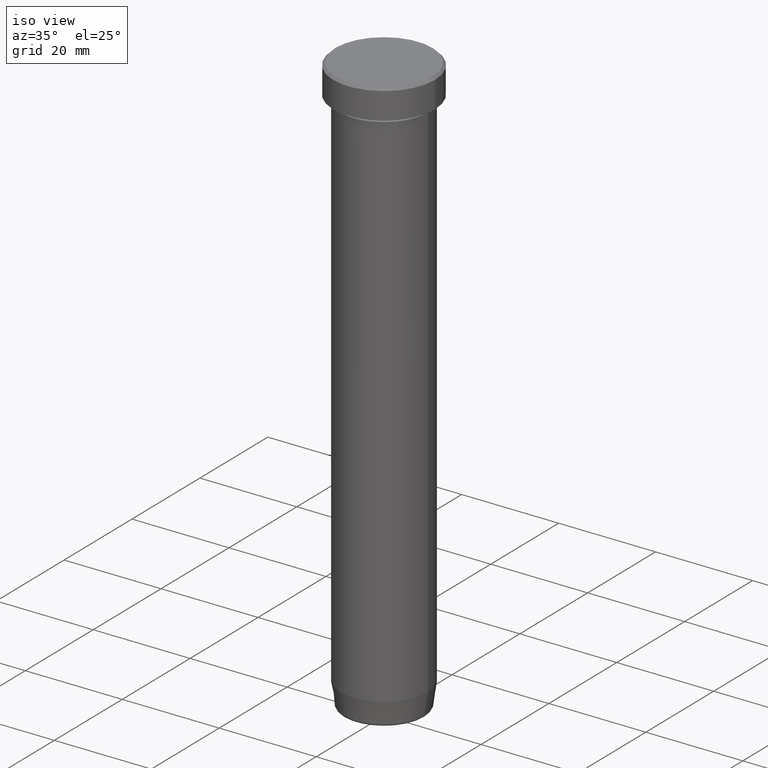
[diagram: clean part render]
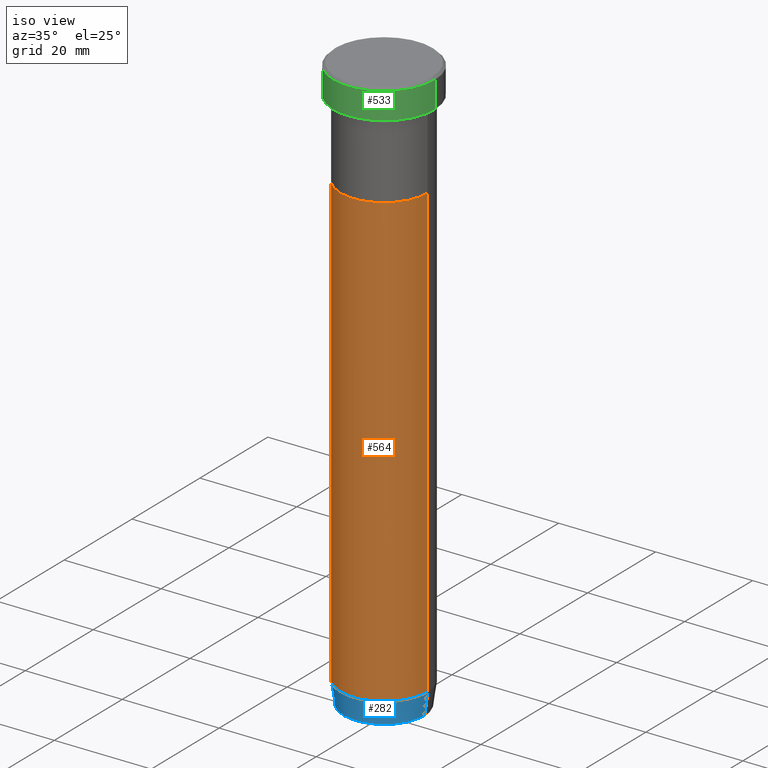
[diagram: same view with three faces highlighted in distinct colors, each labeled with its STEP entity id]
A machine part, iso view with three faces highlighted in distinct colors.
Their STEP definitions:

[orange] entity #564 — the highlighted cylindrical surface (partial cylindrical patch) has radius 9 mm, axis along (-0, -0, 1).
#1 = VERTEX_POINT ( 'NONE', #71 ) ;
#37 = LINE ( 'NONE', #518, #575 ) ;
#56 = EDGE_CURVE ( 'NONE', #336, #117, #84, .T. ) ;
#64 = ORIENTED_EDGE ( 'NONE', *, *, #378, .T. ) ;
#71 = CARTESIAN_POINT ( 'NONE',  ( -9.000000000000000000, 1.102182119232617714E-15, -114.9999999999999858 ) ) ;
#76 = CYLINDRICAL_SURFACE ( 'NONE', #176, 9.000000000000000000 ) ;
#84 = CIRCLE ( 'NONE', #330, 9.000000000000000000 ) ;
#87 = AXIS2_PLACEMENT_3D ( 'NONE', #508, #267, #503 ) ;
#117 = VERTEX_POINT ( 'NONE', #450 ) ;
#121 = DIRECTION ( 'NONE',  ( -0.000000000000000000, -0.000000000000000000, 1.000000000000000000 ) ) ;
#140 = LINE ( 'NONE', #144, #288 ) ;
#144 = CARTESIAN_POINT ( 'NONE',  ( 9.000000000000000000, 0.000000000000000000, 0.000000000000000000 ) ) ;
#156 = FACE_OUTER_BOUND ( 'NONE', #389, .T. ) ;
#171 = CARTESIAN_POINT ( 'NONE',  ( 0.000000000000000000, 0.000000000000000000, 0.000000000000000000 ) ) ;
#176 = AXIS2_PLACEMENT_3D ( 'NONE', #171, #525, #255 ) ;
#193 = CARTESIAN_POINT ( 'NONE',  ( -9.000000000000000000, 1.102182119232617714E-15, -22.00000000000000000 ) ) ;
#225 = CARTESIAN_POINT ( 'NONE',  ( 9.000000000000000000, 0.000000000000000000, -114.9999999999999858 ) ) ;
#255 = DIRECTION ( 'NONE',  ( 1.000000000000000000, 0.000000000000000000, 0.000000000000000000 ) ) ;
#259 = VERTEX_POINT ( 'NONE', #225 ) ;
#262 = EDGE_CURVE ( 'NONE', #1, #259, #398, .T. ) ;
#267 = DIRECTION ( 'NONE',  ( -0.000000000000000000, -0.000000000000000000, 1.000000000000000000 ) ) ;
#283 = DIRECTION ( 'NONE',  ( -0.000000000000000000, -0.000000000000000000, 1.000000000000000000 ) ) ;
#288 = VECTOR ( 'NONE', #283, 1000.000000000000000 ) ;
#325 = EDGE_CURVE ( 'NONE', #1, #336, #37, .T. ) ;
#330 = AXIS2_PLACEMENT_3D ( 'NONE', #354, #121, #530 ) ;
#336 = VERTEX_POINT ( 'NONE', #193 ) ;
#339 = DIRECTION ( 'NONE',  ( -0.000000000000000000, -0.000000000000000000, 1.000000000000000000 ) ) ;
#354 = CARTESIAN_POINT ( 'NONE',  ( 0.000000000000000000, 0.000000000000000000, -22.00000000000000000 ) ) ;
#365 = ORIENTED_EDGE ( 'NONE', *, *, #56, .F. ) ;
#378 = EDGE_CURVE ( 'NONE', #259, #117, #140, .T. ) ;
#389 = EDGE_LOOP ( 'NONE', ( #476, #584, #64, #365 ) ) ;
#398 = CIRCLE ( 'NONE', #87, 9.000000000000000000 ) ;
#450 = CARTESIAN_POINT ( 'NONE',  ( 9.000000000000000000, 0.000000000000000000, -22.00000000000000000 ) ) ;
#476 = ORIENTED_EDGE ( 'NONE', *, *, #325, .F. ) ;
#503 = DIRECTION ( 'NONE',  ( 1.000000000000000000, 0.000000000000000000, 0.000000000000000000 ) ) ;
#508 = CARTESIAN_POINT ( 'NONE',  ( 0.000000000000000000, 0.000000000000000000, -114.9999999999999858 ) ) ;
#518 = CARTESIAN_POINT ( 'NONE',  ( -9.000000000000000000, 1.102182119232617714E-15, 0.000000000000000000 ) ) ;
#525 = DIRECTION ( 'NONE',  ( -0.000000000000000000, -0.000000000000000000, 1.000000000000000000 ) ) ;
#530 = DIRECTION ( 'NONE',  ( 1.000000000000000000, 0.000000000000000000, 0.000000000000000000 ) ) ;
#564 = ADVANCED_FACE ( 'NONE', ( #156 ), #76, .T. ) ;
#575 = VECTOR ( 'NONE', #339, 1000.000000000000000 ) ;
#584 = ORIENTED_EDGE ( 'NONE', *, *, #262, .T. ) ;

[blue] entity #282 — the highlighted conical surface has half-angle 8 deg.
#1 = VERTEX_POINT ( 'NONE', #71 ) ;
#5 = EDGE_CURVE ( 'NONE', #406, #433, #534, .T. ) ;
#13 = CARTESIAN_POINT ( 'NONE',  ( 8.357786491950712104, 0.000000000000000000, -119.5695865504800253 ) ) ;
#55 = DIRECTION ( 'NONE',  ( -0.1391731009600659097, 1.704378926181561528E-17, 0.9902680687415702510 ) ) ;
#71 = CARTESIAN_POINT ( 'NONE',  ( -9.000000000000000000, 1.102182119232617714E-15, -114.9999999999999858 ) ) ;
#87 = AXIS2_PLACEMENT_3D ( 'NONE', #508, #267, #503 ) ;
#91 = DIRECTION ( 'NONE',  ( 1.000000000000000000, 0.000000000000000000, 0.000000000000000000 ) ) ;
#111 = CARTESIAN_POINT ( 'NONE',  ( 8.297295826488038983, 0.000000000000000000, -120.0000000000000000 ) ) ;
#129 = DIRECTION ( 'NONE',  ( -1.000000000000000000, 0.000000000000000000, 0.000000000000000000 ) ) ;
#130 = EDGE_LOOP ( 'NONE', ( #363, #452, #190, #142 ) ) ;
#141 = CONICAL_SURFACE ( 'NONE', #200, 8.297295826488038983, 0.1396263401595468356 ) ;
#142 = ORIENTED_EDGE ( 'NONE', *, *, #262, .F. ) ;
#143 = VECTOR ( 'NONE', #55, 1000.000000000000000 ) ;
#190 = ORIENTED_EDGE ( 'NONE', *, *, #328, .T. ) ;
#200 = AXIS2_PLACEMENT_3D ( 'NONE', #326, #591, #91 ) ;
#218 = DIRECTION ( 'NONE',  ( -0.000000000000000000, -0.000000000000000000, 1.000000000000000000 ) ) ;
#225 = CARTESIAN_POINT ( 'NONE',  ( 9.000000000000000000, 0.000000000000000000, -114.9999999999999858 ) ) ;
#236 = CARTESIAN_POINT ( 'NONE',  ( -8.297295826488038983, 1.016125677548726948E-15, -120.0000000000000000 ) ) ;
#239 = LINE ( 'NONE', #111, #361 ) ;
#259 = VERTEX_POINT ( 'NONE', #225 ) ;
#262 = EDGE_CURVE ( 'NONE', #1, #259, #398, .T. ) ;
#267 = DIRECTION ( 'NONE',  ( -0.000000000000000000, -0.000000000000000000, 1.000000000000000000 ) ) ;
#282 = ADVANCED_FACE ( 'NONE', ( #414 ), #141, .T. ) ;
#293 = LINE ( 'NONE', #236, #143 ) ;
#326 = CARTESIAN_POINT ( 'NONE',  ( 0.000000000000000000, 0.000000000000000000, -120.0000000000000000 ) ) ;
#328 = EDGE_CURVE ( 'NONE', #433, #259, #239, .T. ) ;
#334 = CARTESIAN_POINT ( 'NONE',  ( -8.357786491950712104, 1.062857883382530313E-15, -119.5695865504800253 ) ) ;
#361 = VECTOR ( 'NONE', #390, 1000.000000000000000 ) ;
#363 = ORIENTED_EDGE ( 'NONE', *, *, #396, .F. ) ;
#390 = DIRECTION ( 'NONE',  ( 0.1391731009600659097, 0.000000000000000000, 0.9902680687415702510 ) ) ;
#396 = EDGE_CURVE ( 'NONE', #406, #1, #293, .T. ) ;
#398 = CIRCLE ( 'NONE', #87, 9.000000000000000000 ) ;
#406 = VERTEX_POINT ( 'NONE', #334 ) ;
#414 = FACE_OUTER_BOUND ( 'NONE', #130, .T. ) ;
#433 = VERTEX_POINT ( 'NONE', #13 ) ;
#442 = CARTESIAN_POINT ( 'NONE',  ( 0.000000000000000000, 0.000000000000000000, -119.5695865504800253 ) ) ;
#452 = ORIENTED_EDGE ( 'NONE', *, *, #5, .T. ) ;
#503 = DIRECTION ( 'NONE',  ( 1.000000000000000000, 0.000000000000000000, 0.000000000000000000 ) ) ;
#508 = CARTESIAN_POINT ( 'NONE',  ( 0.000000000000000000, 0.000000000000000000, -114.9999999999999858 ) ) ;
#534 = CIRCLE ( 'NONE', #593, 8.357786491950712104 ) ;
#591 = DIRECTION ( 'NONE',  ( -0.000000000000000000, -0.000000000000000000, 1.000000000000000000 ) ) ;
#593 = AXIS2_PLACEMENT_3D ( 'NONE', #442, #218, #129 ) ;

[green] entity #533 — the highlighted cylindrical surface (partial cylindrical patch) has radius 10.5 mm, axis along (-0, -0, 1).
#14 = VECTOR ( 'NONE', #261, 1000.000000000000000 ) ;
#19 = CARTESIAN_POINT ( 'NONE',  ( 0.000000000000000000, 0.000000000000000000, 0.000000000000000000 ) ) ;
#52 = CARTESIAN_POINT ( 'NONE',  ( 0.000000000000000000, 0.000000000000000000, -6.000000000000000000 ) ) ;
#61 = VERTEX_POINT ( 'NONE', #489 ) ;
#69 = DIRECTION ( 'NONE',  ( -0.000000000000000000, -0.000000000000000000, 1.000000000000000000 ) ) ;
#80 = CYLINDRICAL_SURFACE ( 'NONE', #372, 10.50000000000000000 ) ;
#103 = ORIENTED_EDGE ( 'NONE', *, *, #264, .T. ) ;
#112 = VERTEX_POINT ( 'NONE', #495 ) ;
#118 = CARTESIAN_POINT ( 'NONE',  ( 10.50000000000000000, 0.000000000000000000, -0.5000000000000023315 ) ) ;
#127 = VERTEX_POINT ( 'NONE', #586 ) ;
#186 = DIRECTION ( 'NONE',  ( 1.000000000000000000, 0.000000000000000000, 0.000000000000000000 ) ) ;
#201 = AXIS2_PLACEMENT_3D ( 'NONE', #483, #208, #349 ) ;
#208 = DIRECTION ( 'NONE',  ( 0.000000000000000000, 0.000000000000000000, -1.000000000000000000 ) ) ;
#230 = LINE ( 'NONE', #499, #14 ) ;
#243 = DIRECTION ( 'NONE',  ( -0.000000000000000000, -0.000000000000000000, 1.000000000000000000 ) ) ;
#252 = EDGE_CURVE ( 'NONE', #127, #112, #230, .T. ) ;
#253 = VECTOR ( 'NONE', #243, 1000.000000000000000 ) ;
#261 = DIRECTION ( 'NONE',  ( -0.000000000000000000, -0.000000000000000000, 1.000000000000000000 ) ) ;
#263 = CIRCLE ( 'NONE', #408, 10.50000000000000000 ) ;
#264 = EDGE_CURVE ( 'NONE', #127, #61, #263, .T. ) ;
#284 = ORIENTED_EDGE ( 'NONE', *, *, #573, .T. ) ;
#316 = DIRECTION ( 'NONE',  ( -0.000000000000000000, -0.000000000000000000, 1.000000000000000000 ) ) ;
#349 = DIRECTION ( 'NONE',  ( 1.000000000000000000, 0.000000000000000000, 0.000000000000000000 ) ) ;
#355 = EDGE_CURVE ( 'NONE', #61, #587, #468, .T. ) ;
#372 = AXIS2_PLACEMENT_3D ( 'NONE', #19, #69, #436 ) ;
#383 = CARTESIAN_POINT ( 'NONE',  ( 10.50000000000000000, 0.000000000000000000, 0.000000000000000000 ) ) ;
#408 = AXIS2_PLACEMENT_3D ( 'NONE', #52, #316, #186 ) ;
#428 = CIRCLE ( 'NONE', #201, 10.50000000000000000 ) ;
#435 = EDGE_LOOP ( 'NONE', ( #438, #103, #462, #284 ) ) ;
#436 = DIRECTION ( 'NONE',  ( 1.000000000000000000, 0.000000000000000000, 0.000000000000000000 ) ) ;
#438 = ORIENTED_EDGE ( 'NONE', *, *, #252, .F. ) ;
#462 = ORIENTED_EDGE ( 'NONE', *, *, #355, .T. ) ;
#468 = LINE ( 'NONE', #383, #253 ) ;
#483 = CARTESIAN_POINT ( 'NONE',  ( 0.000000000000000000, 0.000000000000000000, -0.5000000000000023315 ) ) ;
#489 = CARTESIAN_POINT ( 'NONE',  ( 10.50000000000000000, 0.000000000000000000, -6.000000000000000000 ) ) ;
#495 = CARTESIAN_POINT ( 'NONE',  ( -10.50000000000000000, 1.285879139104720831E-15, -0.5000000000000023315 ) ) ;
#499 = CARTESIAN_POINT ( 'NONE',  ( -10.50000000000000000, 1.285879139104720831E-15, 0.000000000000000000 ) ) ;
#531 = FACE_OUTER_BOUND ( 'NONE', #435, .T. ) ;
#533 = ADVANCED_FACE ( 'NONE', ( #531 ), #80, .T. ) ;
#573 = EDGE_CURVE ( 'NONE', #587, #112, #428, .T. ) ;
#586 = CARTESIAN_POINT ( 'NONE',  ( -10.50000000000000000, 1.285879139104720831E-15, -6.000000000000000000 ) ) ;
#587 = VERTEX_POINT ( 'NONE', #118 ) ;